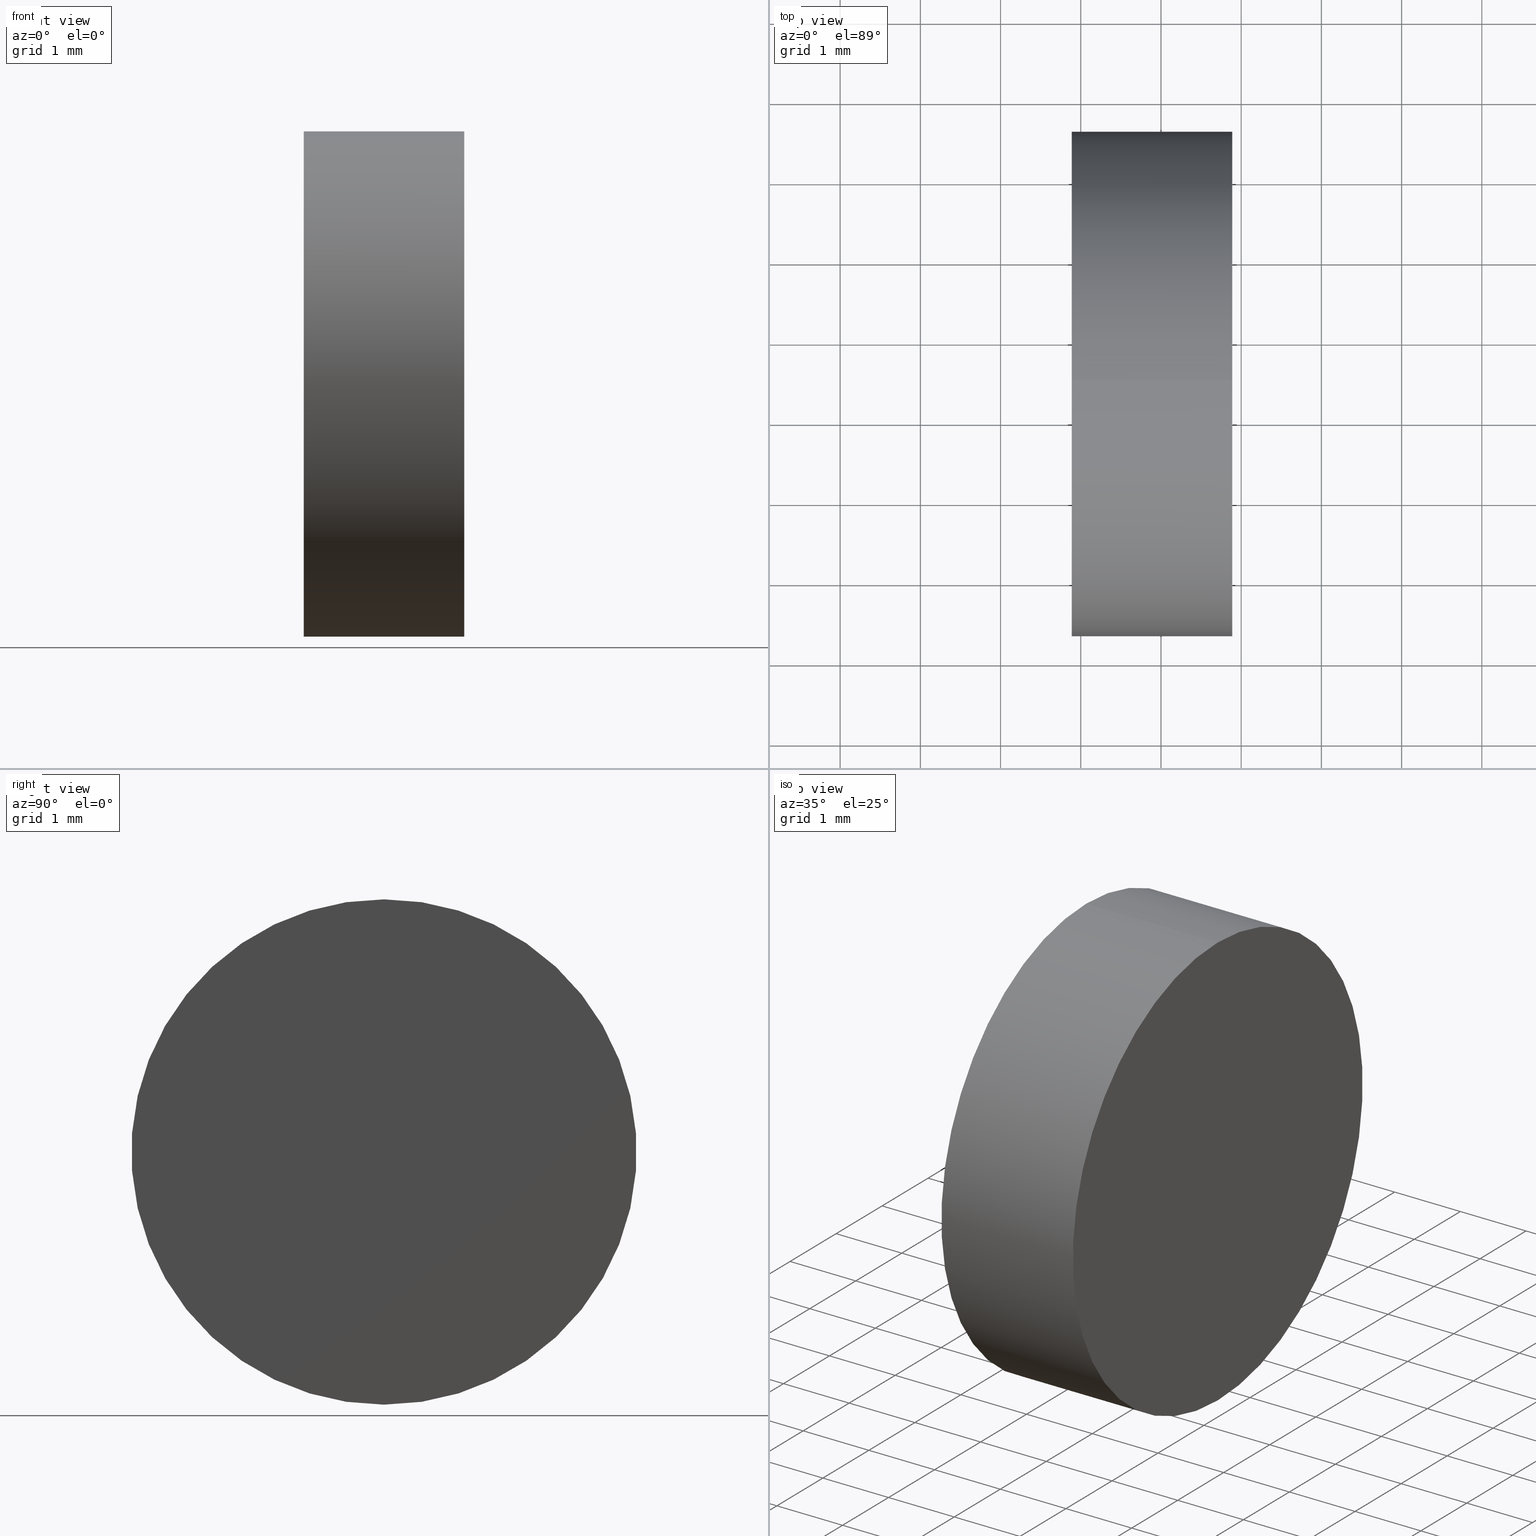
[diagram: canonical four-view strip — front | top / right | iso, engineering-drawing reading convention]
A machine part, canonical four-view strip (front | top / right | iso — engineering-drawing reading convention). The complete STEP part file that produces these views, byte-faithful:
ISO-10303-21;
HEADER;
FILE_DESCRIPTION (( 'STEP AP214' ),
    '1' );
FILE_NAME ('260001.STEP',
    '2019-07-15T02:41:16',
    ( '' ),
    ( '' ),
    'SwSTEP 2.0',
    'SolidWorks 2016',
    '' );
FILE_SCHEMA (( 'AUTOMOTIVE_DESIGN' ));
ENDSEC;

DATA;
#1 = UNCERTAINTY_MEASURE_WITH_UNIT (LENGTH_MEASURE( 1.000000000000000100E-005 ), #11, 'distance_accuracy_value', 'NONE');
#2 = PRESENTATION_LAYER_ASSIGNMENT (  '', '', ( #42 ) ) ;
#3 =( LENGTH_UNIT ( ) NAMED_UNIT ( * ) SI_UNIT ( .MILLI., .METRE. ) );
#4 = EDGE_CURVE ( 'NONE', #30, #132, #14, .T. ) ;
#5 = CLOSED_SHELL ( 'NONE', ( #137, #74, #78, #93 ) ) ;
#6 = FILL_AREA_STYLE ('',( #75 ) ) ;
#7 = CARTESIAN_POINT ( 'NONE',  ( 0.0000000000000000000, 0.0000000000000000000, 0.0000000000000000000 ) ) ;
#8 = DIRECTION ( 'NONE',  ( 0.0000000000000000000, 0.0000000000000000000, 1.000000000000000000 ) ) ;
#9 = PRODUCT_DEFINITION ( 'δ֪', '', #64, #127 ) ;
#10 = PRESENTATION_STYLE_ASSIGNMENT (( #39 ) ) ;
#11 =( LENGTH_UNIT ( ) NAMED_UNIT ( * ) SI_UNIT ( .MILLI., .METRE. ) );
#12 = AXIS2_PLACEMENT_3D ( 'NONE', #27, #86, #91 ) ;
#13 = MANIFOLD_SOLID_BREP ( '��ת1', #5 ) ;
#14 = LINE ( 'NONE', #115, #53 ) ;
#15 = EDGE_CURVE ( 'NONE', #47, #18, #96, .T. ) ;
#16 = CARTESIAN_POINT ( 'NONE',  ( 50.80016039852321100, 15.45863586980308400, 3.150000000000001700 ) ) ;
#17 = CYLINDRICAL_SURFACE ( 'NONE', #12, 3.150000000000001700 ) ;
#18 = VERTEX_POINT ( 'NONE', #114 ) ;
#19 = SURFACE_STYLE_USAGE ( .BOTH. , #97 ) ;
#20 = AXIS2_PLACEMENT_3D ( 'NONE', #45, #89, #79 ) ;
#21 = ORIENTED_EDGE ( 'NONE', *, *, #139, .F. ) ;
#22 = AXIS2_PLACEMENT_3D ( 'NONE', #100, #58, #136 ) ;
#23 = PRODUCT_RELATED_PRODUCT_CATEGORY ( 'part', '', ( #110 ) ) ;
#24 = AXIS2_PLACEMENT_3D ( 'NONE', #59, #70, #8 ) ;
#25 = DIRECTION ( 'NONE',  ( -1.000000000000000000, -0.0000000000000000000, -0.0000000000000000000 ) ) ;
#26 = PLANE ( 'NONE',  #22 ) ;
#27 = CARTESIAN_POINT ( 'NONE',  ( 50.80016039852321100, 15.45863586980308400, 0.0000000000000000000 ) ) ;
#28 =( NAMED_UNIT ( * ) SI_UNIT ( $, .STERADIAN. ) SOLID_ANGLE_UNIT ( ) );
#29 = CIRCLE ( 'NONE', #135, 3.150000000000001700 ) ;
#30 = VERTEX_POINT ( 'NONE', #102 ) ;
#31 = CYLINDRICAL_SURFACE ( 'NONE', #104, 3.150000000000001700 ) ;
#32 = ORIENTED_EDGE ( 'NONE', *, *, #33, .F. ) ;
#33 = EDGE_CURVE ( 'NONE', #47, #30, #29, .T. ) ;
#34 = ORIENTED_EDGE ( 'NONE', *, *, #15, .T. ) ;
#35 = CARTESIAN_POINT ( 'NONE',  ( 51.88796447852888600, 15.45863586980308400, 0.0000000000000000000 ) ) ;
#36 = CARTESIAN_POINT ( 'NONE',  ( 53.88796447852887200, 15.45863586980308400, 0.0000000000000000000 ) ) ;
#37 =( GEOMETRIC_REPRESENTATION_CONTEXT ( 3 ) GLOBAL_UNCERTAINTY_ASSIGNED_CONTEXT ( ( #87 ) ) GLOBAL_UNIT_ASSIGNED_CONTEXT ( ( #3, #116, #68 ) ) REPRESENTATION_CONTEXT ( 'NONE', 'WORKASPACE' ) );
#38 = EDGE_CURVE ( 'NONE', #132, #18, #40, .T. ) ;
#39 = SURFACE_STYLE_USAGE ( .BOTH. , #71 ) ;
#40 = CIRCLE ( 'NONE', #88, 3.150000000000001700 ) ;
#41 = EDGE_LOOP ( 'NONE', ( #107, #105 ) ) ;
#42 = STYLED_ITEM ( 'NONE', ( #118 ), #13 ) ;
#43 = ORIENTED_EDGE ( 'NONE', *, *, #38, .F. ) ;
#44 = DIRECTION ( 'NONE',  ( -1.000000000000000000, -0.0000000000000000000, -0.0000000000000000000 ) ) ;
#45 = CARTESIAN_POINT ( 'NONE',  ( 51.88796447852888600, 15.45863586980308400, 0.0000000000000000000 ) ) ;
#46 = DIRECTION ( 'NONE',  ( 0.0000000000000000000, 0.0000000000000000000, 1.000000000000000000 ) ) ;
#47 = VERTEX_POINT ( 'NONE', #66 ) ;
#48 = COLOUR_RGB ( '',1.000000000000000000, 1.000000000000000000, 1.000000000000000000 ) ;
#49 = APPLICATION_CONTEXT ( 'automotive_design' ) ;
#50 = FACE_OUTER_BOUND ( 'NONE', #103, .T. ) ;
#51 = APPLICATION_PROTOCOL_DEFINITION ( 'draft international standard', 'automotive_design', 1998, #49 ) ;
#52 = MECHANICAL_DESIGN_GEOMETRIC_PRESENTATION_REPRESENTATION (  '', ( #111 ), #60 ) ;
#53 = VECTOR ( 'NONE', #134, 1000.000000000000000 ) ;
#54 = FACE_OUTER_BOUND ( 'NONE', #113, .T. ) ;
#55 = UNCERTAINTY_MEASURE_WITH_UNIT (LENGTH_MEASURE( 1.000000000000000100E-005 ), #92, 'distance_accuracy_value', 'NONE');
#56 = CARTESIAN_POINT ( 'NONE',  ( 51.88796447852888600, 15.45863586980308400, 0.0000000000000000000 ) ) ;
#57 = CARTESIAN_POINT ( 'NONE',  ( 50.80016039852321100, 15.45863586980308400, 0.0000000000000000000 ) ) ;
#58 = DIRECTION ( 'NONE',  ( -1.000000000000000000, 0.0000000000000000000, -0.0000000000000000000 ) ) ;
#59 = CARTESIAN_POINT ( 'NONE',  ( 53.88796447852887200, 15.45863586980308400, 0.0000000000000000000 ) ) ;
#60 =( GEOMETRIC_REPRESENTATION_CONTEXT ( 3 ) GLOBAL_UNCERTAINTY_ASSIGNED_CONTEXT ( ( #1 ) ) GLOBAL_UNIT_ASSIGNED_CONTEXT ( ( #11, #108, #83 ) ) REPRESENTATION_CONTEXT ( 'NONE', 'WORKASPACE' ) );
#61 = ADVANCED_BREP_SHAPE_REPRESENTATION ( '260001', ( #13, #123 ), #85 ) ;
#62 = SHAPE_DEFINITION_REPRESENTATION ( #129, #61 ) ;
#63 = SURFACE_STYLE_FILL_AREA ( #6 ) ;
#64 = PRODUCT_DEFINITION_FORMATION_WITH_SPECIFIED_SOURCE ( '�κ�', '', #110, .NOT_KNOWN. ) ;
#65 = AXIS2_PLACEMENT_3D ( 'NONE', #56, #99, #77 ) ;
#66 = CARTESIAN_POINT ( 'NONE',  ( 53.88796447852887200, 15.45863586980308400, 3.150000000000001700 ) ) ;
#67 = FACE_OUTER_BOUND ( 'NONE', #41, .T. ) ;
#68 =( NAMED_UNIT ( * ) SI_UNIT ( $, .STERADIAN. ) SOLID_ANGLE_UNIT ( ) );
#69 = CARTESIAN_POINT ( 'NONE',  ( 51.88796447852888600, 15.45863586980308400, -3.150000000000001700 ) ) ;
#70 = DIRECTION ( 'NONE',  ( -1.000000000000000000, -0.0000000000000000000, -0.0000000000000000000 ) ) ;
#71 = SURFACE_SIDE_STYLE ('',( #106 ) ) ;
#72 = PRODUCT_CONTEXT ( 'NONE', #117, 'mechanical' ) ;
#73 = ORIENTED_EDGE ( 'NONE', *, *, #94, .F. ) ;
#74 = ADVANCED_FACE ( 'NONE', ( #67 ), #133, .F. ) ;
#75 = FILL_AREA_STYLE_COLOUR ( '', #48 ) ;
#76 = ORIENTED_EDGE ( 'NONE', *, *, #33, .T. ) ;
#77 = DIRECTION ( 'NONE',  ( 0.0000000000000000000, 0.0000000000000000000, -1.000000000000000000 ) ) ;
#78 = ADVANCED_FACE ( 'NONE', ( #112 ), #17, .T. ) ;
#79 = DIRECTION ( 'NONE',  ( 0.0000000000000000000, 0.0000000000000000000, 1.000000000000000000 ) ) ;
#80 = EDGE_LOOP ( 'NONE', ( #84, #98, #34, #43 ) ) ;
#81 = CIRCLE ( 'NONE', #20, 3.150000000000001700 ) ;
#82 = ORIENTED_EDGE ( 'NONE', *, *, #15, .F. ) ;
#83 =( NAMED_UNIT ( * ) SI_UNIT ( $, .STERADIAN. ) SOLID_ANGLE_UNIT ( ) );
#84 = ORIENTED_EDGE ( 'NONE', *, *, #4, .F. ) ;
#85 =( GEOMETRIC_REPRESENTATION_CONTEXT ( 3 ) GLOBAL_UNCERTAINTY_ASSIGNED_CONTEXT ( ( #55 ) ) GLOBAL_UNIT_ASSIGNED_CONTEXT ( ( #92, #138, #28 ) ) REPRESENTATION_CONTEXT ( 'NONE', 'WORKASPACE' ) );
#86 = DIRECTION ( 'NONE',  ( -1.000000000000000000, -0.0000000000000000000, -0.0000000000000000000 ) ) ;
#87 = UNCERTAINTY_MEASURE_WITH_UNIT (LENGTH_MEASURE( 1.000000000000000100E-005 ), #3, 'distance_accuracy_value', 'NONE');
#88 = AXIS2_PLACEMENT_3D ( 'NONE', #35, #124, #122 ) ;
#89 = DIRECTION ( 'NONE',  ( -1.000000000000000000, -0.0000000000000000000, -0.0000000000000000000 ) ) ;
#90 = VECTOR ( 'NONE', #25, 1000.000000000000000 ) ;
#91 = DIRECTION ( 'NONE',  ( 0.0000000000000000000, 0.0000000000000000000, 1.000000000000000000 ) ) ;
#92 =( LENGTH_UNIT ( ) NAMED_UNIT ( * ) SI_UNIT ( .MILLI., .METRE. ) );
#93 = ADVANCED_FACE ( 'NONE', ( #54 ), #26, .F. ) ;
#94 = EDGE_CURVE ( 'NONE', #18, #132, #81, .T. ) ;
#95 = ORIENTED_EDGE ( 'NONE', *, *, #4, .T. ) ;
#96 = LINE ( 'NONE', #16, #90 ) ;
#97 = SURFACE_SIDE_STYLE ('',( #63 ) ) ;
#98 = ORIENTED_EDGE ( 'NONE', *, *, #139, .T. ) ;
#99 = DIRECTION ( 'NONE',  ( 1.000000000000000000, 0.0000000000000000000, 0.0000000000000000000 ) ) ;
#100 = CARTESIAN_POINT ( 'NONE',  ( 53.88796447852887200, 18.60863586980308400, 0.0000000000000000000 ) ) ;
#101 = MECHANICAL_DESIGN_GEOMETRIC_PRESENTATION_REPRESENTATION (  '', ( #42 ), #37 ) ;
#102 = CARTESIAN_POINT ( 'NONE',  ( 53.88796447852887200, 15.45863586980308400, -3.150000000000001700 ) ) ;
#103 = EDGE_LOOP ( 'NONE', ( #76, #95, #73, #82 ) ) ;
#104 = AXIS2_PLACEMENT_3D ( 'NONE', #57, #44, #121 ) ;
#105 = ORIENTED_EDGE ( 'NONE', *, *, #38, .T. ) ;
#106 = SURFACE_STYLE_FILL_AREA ( #109 ) ;
#107 = ORIENTED_EDGE ( 'NONE', *, *, #94, .T. ) ;
#108 =( NAMED_UNIT ( * ) PLANE_ANGLE_UNIT ( ) SI_UNIT ( $, .RADIAN. ) );
#109 = FILL_AREA_STYLE ('',( #126 ) ) ;
#110 = PRODUCT ( '260001', '260001', '', ( #72 ) ) ;
#111 = STYLED_ITEM ( 'NONE', ( #10 ), #61 ) ;
#112 = FACE_OUTER_BOUND ( 'NONE', #80, .T. ) ;
#113 = EDGE_LOOP ( 'NONE', ( #32, #21 ) ) ;
#114 = CARTESIAN_POINT ( 'NONE',  ( 51.88796447852888600, 15.45863586980308400, 3.150000000000001700 ) ) ;
#115 = CARTESIAN_POINT ( 'NONE',  ( 50.80016039852321100, 15.45863586980308400, -3.150000000000001700 ) ) ;
#116 =( NAMED_UNIT ( * ) PLANE_ANGLE_UNIT ( ) SI_UNIT ( $, .RADIAN. ) );
#117 = APPLICATION_CONTEXT ( 'automotive_design' ) ;
#118 = PRESENTATION_STYLE_ASSIGNMENT (( #19 ) ) ;
#119 = APPLICATION_PROTOCOL_DEFINITION ( 'draft international standard', 'automotive_design', 1998, #117 ) ;
#120 = DIRECTION ( 'NONE',  ( 1.000000000000000000, 0.0000000000000000000, 0.0000000000000000000 ) ) ;
#121 = DIRECTION ( 'NONE',  ( 0.0000000000000000000, 0.0000000000000000000, 1.000000000000000000 ) ) ;
#122 = DIRECTION ( 'NONE',  ( 0.0000000000000000000, 0.0000000000000000000, 1.000000000000000000 ) ) ;
#123 = AXIS2_PLACEMENT_3D ( 'NONE', #7, #128, #120 ) ;
#124 = DIRECTION ( 'NONE',  ( -1.000000000000000000, -0.0000000000000000000, -0.0000000000000000000 ) ) ;
#125 = DIRECTION ( 'NONE',  ( -1.000000000000000000, -0.0000000000000000000, -0.0000000000000000000 ) ) ;
#126 = FILL_AREA_STYLE_COLOUR ( '', #140 ) ;
#127 = PRODUCT_DEFINITION_CONTEXT ( 'detailed design', #49, 'design' ) ;
#128 = DIRECTION ( 'NONE',  ( 0.0000000000000000000, 0.0000000000000000000, 1.000000000000000000 ) ) ;
#129 = PRODUCT_DEFINITION_SHAPE ( 'NONE', 'NONE',  #9 ) ;
#130 = PRESENTATION_LAYER_ASSIGNMENT (  '', '', ( #111 ) ) ;
#131 = CIRCLE ( 'NONE', #24, 3.150000000000001700 ) ;
#132 = VERTEX_POINT ( 'NONE', #69 ) ;
#133 = PLANE ( 'NONE',  #65 ) ;
#134 = DIRECTION ( 'NONE',  ( -1.000000000000000000, -0.0000000000000000000, -0.0000000000000000000 ) ) ;
#135 = AXIS2_PLACEMENT_3D ( 'NONE', #36, #125, #46 ) ;
#136 = DIRECTION ( 'NONE',  ( -0.0000000000000000000, 0.0000000000000000000, 1.000000000000000000 ) ) ;
#137 = ADVANCED_FACE ( 'NONE', ( #50 ), #31, .T. ) ;
#138 =( NAMED_UNIT ( * ) PLANE_ANGLE_UNIT ( ) SI_UNIT ( $, .RADIAN. ) );
#139 = EDGE_CURVE ( 'NONE', #30, #47, #131, .T. ) ;
#140 = COLOUR_RGB ( '',1.000000000000000000, 1.000000000000000000, 1.000000000000000000 ) ;
ENDSEC;
END-ISO-10303-21;
